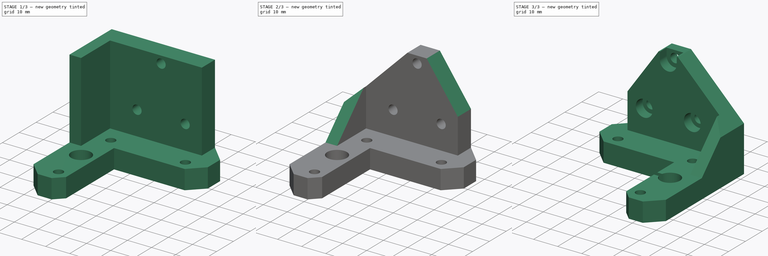
[diagram: build sequence overview — one tinted view per stage of 3, left to right]
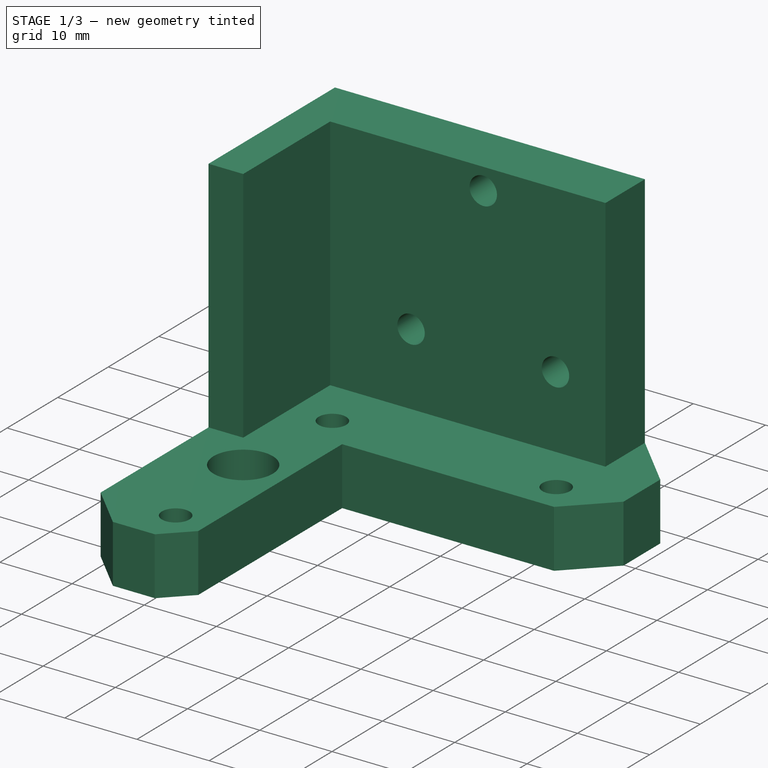
[diagram: stage 1 of 3 — iso view after this stage's code; geometry added in this stage tinted green]
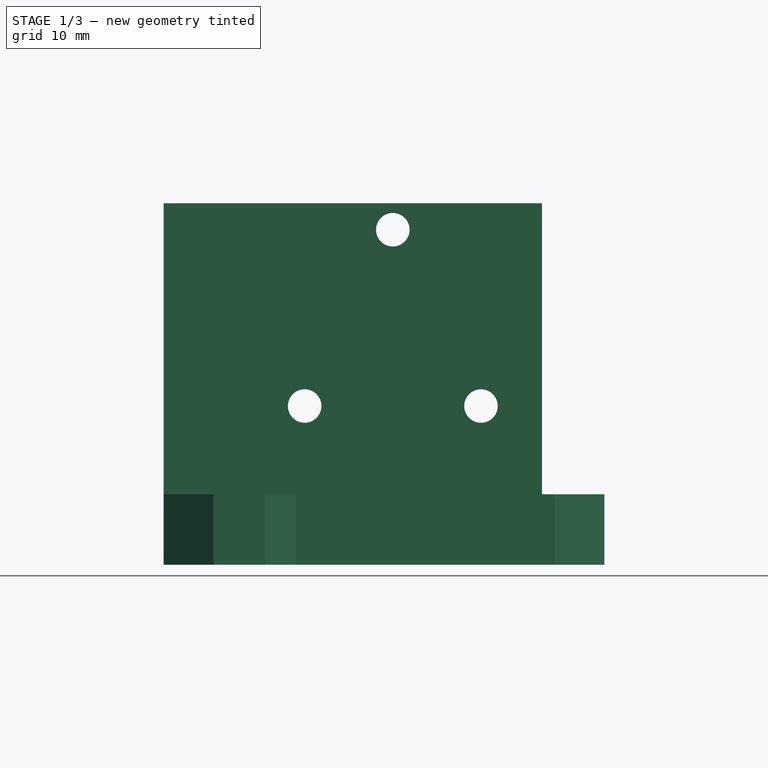
[diagram: stage 1 of 3 — front view after this stage's code; geometry added in this stage tinted green]
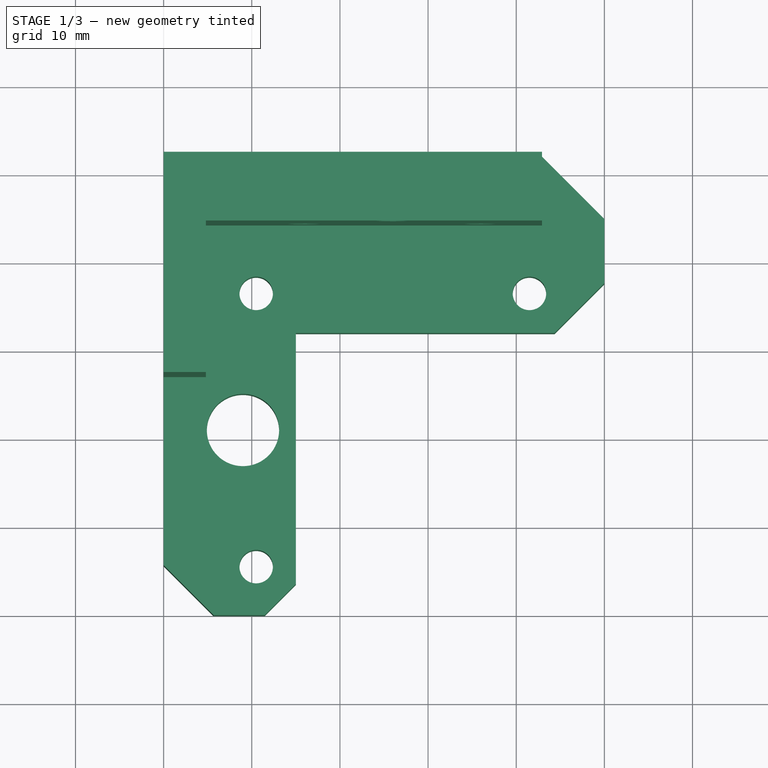
[diagram: stage 1 of 3 — top view after this stage's code; geometry added in this stage tinted green]
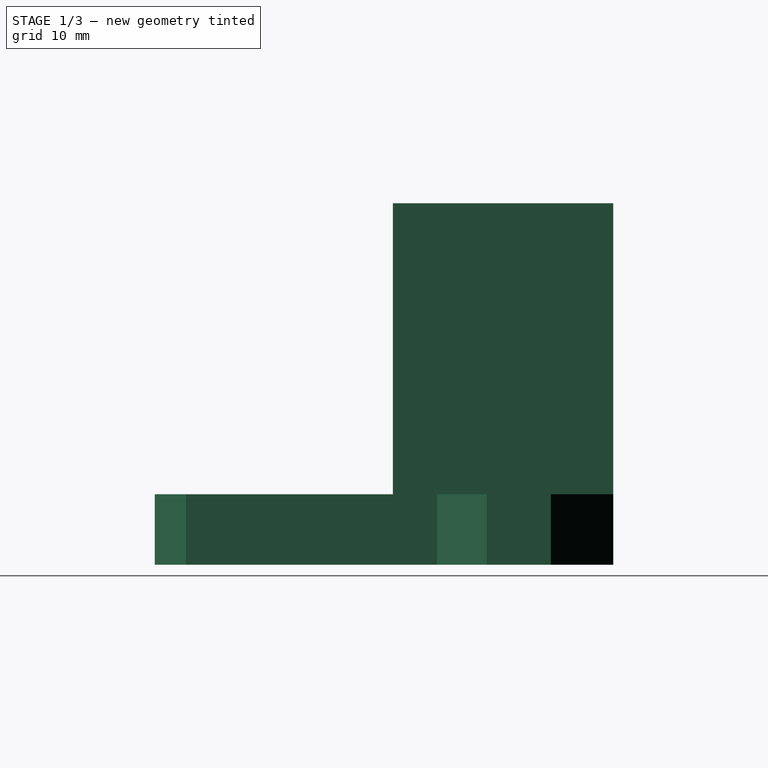
[diagram: stage 1 of 3 — right view after this stage's code; geometry added in this stage tinted green]
FCSTD DOCUMENT  (FreeCAD 0.15R4671 (Git))
Label: z-motor
License: All rights reserved
LicenseURL: http://en.wikipedia.org/wiki/All_rights_reserved
objects: Sketcher::SketchObject×7, PartDesign::Pocket×5, PartDesign::Pad×2, Part::Mirroring×1
note: 22 computed .brp shape members not serialized (recipe doc carries the construction recipe); baked Part::Feature solids carry a one-line shape summary decoded from their .brp

FEATURE [Sketcher::SketchObject] Sketch
  Placement = pos=(0,0,10) rot=(0,0,1;0rad)
  sketch-geometry (19):
    g0: Circle CenterX=41.5 CenterY=36.5 CenterZ=0 NormalX=0 NormalY=0 NormalZ=1 Radius=1.9
    g1: Circle CenterX=10.5 CenterY=36.5 CenterZ=0 NormalX=0 NormalY=0 NormalZ=1 Radius=1.9
    g2: Circle CenterX=10.5 CenterY=5.5 CenterZ=0 NormalX=0 NormalY=0 NormalZ=1 Radius=1.9
    g3: LineSegment [constr] StartX=10.5 StartY=36.5 StartZ=0 EndX=41.5 EndY=36.5 EndZ=0
    g4: LineSegment [constr] StartX=10.5 StartY=5.5 StartZ=0 EndX=10.5 EndY=36.5 EndZ=0
    g5: Circle CenterX=9 CenterY=21 CenterZ=0 NormalX=0 NormalY=0 NormalZ=1 Radius=4.1
    g6: GeomPoint [constr] X=26 Y=36.5 Z=0
    g7: LineSegment [constr] StartX=26 StartY=36.5 StartZ=0 EndX=26 EndY=21 EndZ=0
    g8: LineSegment [constr] StartX=9 StartY=21 StartZ=0 EndX=26 EndY=21 EndZ=0
    g9: LineSegment StartX=0 StartY=52 StartZ=0 EndX=0 EndY=5.65685 EndZ=0
    g10: LineSegment StartX=0 StartY=5.65685 StartZ=0 EndX=5.65685 EndY=0 EndZ=0
    g11: LineSegment StartX=5.65685 StartY=0 StartZ=0 EndX=11.4645 EndY=0 EndZ=0
    g12: LineSegment StartX=11.4645 StartY=0 StartZ=0 EndX=15 EndY=3.53553 EndZ=0
    g13: LineSegment StartX=15 StartY=3.53553 StartZ=0 EndX=15 EndY=32 EndZ=0
    g14: LineSegment StartX=15 StartY=32 StartZ=0 EndX=44.3431 EndY=32 EndZ=0
    g15: LineSegment StartX=44.3431 StartY=32 StartZ=0 EndX=50 EndY=37.6569 EndZ=0
    g16: LineSegment StartX=50 StartY=37.6569 StartZ=0 EndX=50 EndY=44.9289 EndZ=0
    g17: LineSegment StartX=50 StartY=44.9289 StartZ=0 EndX=42.9289 EndY=52 EndZ=0
    g18: LineSegment StartX=42.9289 StartY=52 StartZ=0 EndX=0 EndY=52 EndZ=0
  constraints (53):
    c: Coincident(g3,g1)
    c: Coincident(g3,g0)
    c: Coincident(g4,g2)
    c: Coincident(g4,g1)
    c: Vertical(g4)
    c: Equal(g3,g4)
    c: Horizontal(g3)
    c: Distance(g3) = 31
    c: Radius(g0) = 1.9
    c: Equal(g1,g0)
    c: Equal(g0,g2)
    c: Radius(g5) = 4.1
    c: PointOnObject(g6,g3)
    c: DistanceX(g6,g1) = -15.5
    c: Coincident(g7,g6)
    c: Vertical(g7)
    c: Coincident(g8,g5)
    c: Coincident(g8,g7)
    c: Horizontal(g8)
    c: DistanceY(g5,g1) = 15.5
    c: Distance(g8) = 17
    c: Vertical(g9)
    c: Coincident(g9,g10)
    c: PointOnObject(g10,g-1)
    c: Coincident(g10,g11)
    c: PointOnObject(g11,g-1)
    c: Coincident(g11,g12)
    c: Coincident(g12,g13)
    c: Vertical(g13)
    c: Coincident(g13,g14)
    c: Horizontal(g14)
    c: Coincident(g14,g15)
    c: Coincident(g15,g16)
    c: Coincident(g17,g18)
    c: Coincident(g9,g18)
    c: Coincident(g16,g17)
    c: Angle(g12,g-1) = 2.35619
    c: Angle(g10,g-1) = 0.785398
    c: Distance(g2,g13) = 4.5
    c: Distance(g2,g11) = 5.5
    c: Distance(g0,g14) = 4.5
    c: DistanceX(g-1,g2) = 10.5
    c: Distance(g10) = 8
    c: Distance(g12) = 5
    c: Distance(g15) = 8
    c: Distance(g17) = 10
    c: Horizontal(g18)
    c: Vertical(g16)
    c: Angle(g18,g17) = 2.35619
    c: Angle(g16,g15) = 2.35619
    c: DistanceY(g-1,g9) = 52
    c: Distance(g16,g9) = 50
    c: PointOnObject(g9,g-2)
FEATURE [PartDesign::Pad] Pad
  Length = 8
  Length2 = 100
  Placement = pos=(0,0,10) rot=(0,0,1;0rad)
  Sketch = -> Sketch
  Type = 0
FEATURE [Sketcher::SketchObject] Sketch001
  ExternalGeometry = -> [Pad]
  Placement = pos=(0,0,18) rot=(0,0,1;0rad)
  Support = -> Pad [Face16]
  sketch-geometry (6):
    g0: LineSegment StartX=42.9289 StartY=52 StartZ=0 EndX=0 EndY=52 EndZ=0
    g1: LineSegment StartX=0 StartY=52 StartZ=0 EndX=0 EndY=27 EndZ=0
    g2: LineSegment StartX=0 StartY=27 StartZ=0 EndX=4.8 EndY=27 EndZ=0
    g3: LineSegment StartX=4.8 StartY=27 StartZ=0 EndX=4.8 EndY=44.2 EndZ=0
    g4: LineSegment StartX=4.8 StartY=44.2 StartZ=0 EndX=42.9289 EndY=44.2 EndZ=0
    g5: LineSegment StartX=42.9289 StartY=44.2 StartZ=0 EndX=42.9289 EndY=52 EndZ=0
  constraints (16):
    c: Coincident(g-3,g0)
    c: Coincident(g0,g-3)
    c: Coincident(g0,g1)
    c: Vertical(g1)
    c: Coincident(g1,g2)
    c: Horizontal(g2)
    c: Coincident(g2,g3)
    c: Vertical(g3)
    c: Coincident(g3,g4)
    c: Horizontal(g4)
    c: Coincident(g4,g5)
    c: Coincident(g5,g0)
    c: Vertical(g5)
    c: Distance(g5) = 7.8
    c: Distance(g2) = 4.8
    c: Distance(g1,g-3) = 25
FEATURE [PartDesign::Pad] Pad001
  Length = 33
  Length2 = 100
  Placement = pos=(0,0,10) rot=(0,0,1;0rad)
  Sketch = -> Sketch001
  Type = 0
FEATURE [Sketcher::SketchObject] Sketch002
  ExternalGeometry = -> [Pad001]
  Placement = pos=(0,44.2,10) rot=(1,0,0;1.5708rad)
  Support = -> Pad001 [Face22]
  sketch-geometry (8):
    g0: Circle CenterX=26 CenterY=38 CenterZ=0 NormalX=0 NormalY=0 NormalZ=1 Radius=1.9
    g1: Circle CenterX=16 CenterY=18 CenterZ=0 NormalX=0 NormalY=0 NormalZ=1 Radius=1.9
    g2: Circle CenterX=36 CenterY=18 CenterZ=0 NormalX=0 NormalY=0 NormalZ=1 Radius=1.9
    g3: LineSegment [constr] StartX=16 StartY=18 StartZ=0 EndX=26 EndY=18 EndZ=0
    g4: LineSegment [constr] StartX=26 StartY=18 StartZ=0 EndX=36 EndY=18 EndZ=0
    g5: LineSegment [constr] StartX=26 StartY=38 StartZ=0 EndX=26 EndY=18 EndZ=0
    g6: LineSegment [constr] StartX=12.4 StartY=8 StartZ=0 EndX=27.9 EndY=18 EndZ=0
    g7: LineSegment [constr] StartX=27.9 StartY=18 StartZ=0 EndX=43.4 EndY=8 EndZ=0
  constraints (21):
    c: Coincident(g3,g1)
    c: Horizontal(g3)
    c: Coincident(g4,g3)
    c: Horizontal(g4)
    c: Coincident(g5,g0)
    c: Coincident(g5,g3)
    c: Vertical(g5)
    c: Equal(g4,g3)
    c: Coincident(g2,g4)
    c: DistanceX(g1,g2) = 20
    c: DistanceY(g5) = -20
    c: Coincident(g6,g-3)
    c: Coincident(g7,g-4)
    c: Coincident(g6,g7)
    c: Equal(g6,g7)
    c: Distance(g6,g-5) = 10
    c: PointOnObject(g6,g4)
    c: DistanceX(g3,g6) = 1.9
    c: Equal(g2,g1)
    c: Equal(g1,g0)
    c: Radius(g0) = 1.9
FEATURE [PartDesign::Pocket] Pocket
  Length = 5
  Placement = pos=(0,0,10) rot=(0,0,1;0rad)
  Sketch = -> Sketch002
  Type = 1
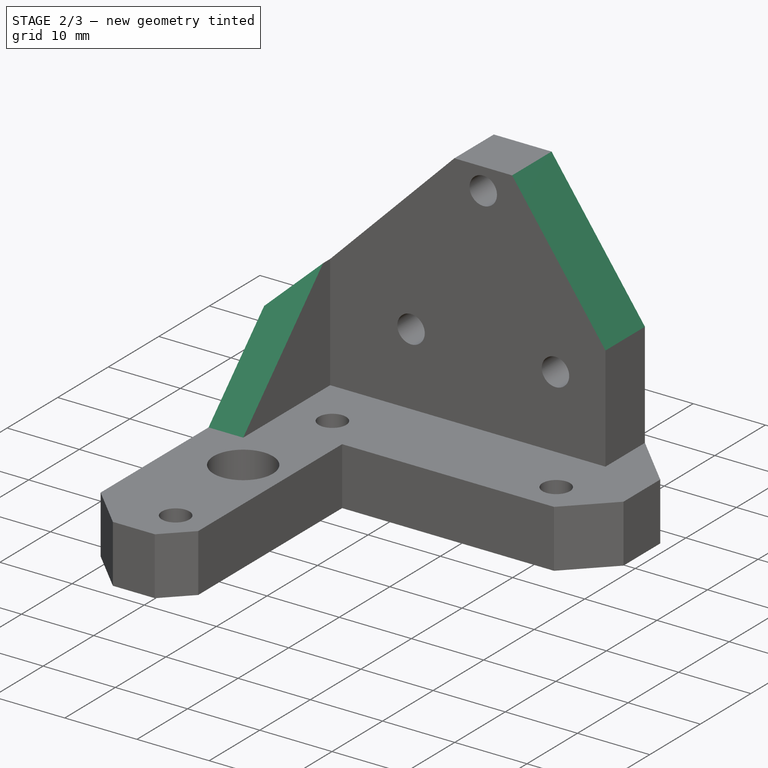
[diagram: stage 2 of 3 — iso view after this stage's code; geometry added in this stage tinted green]
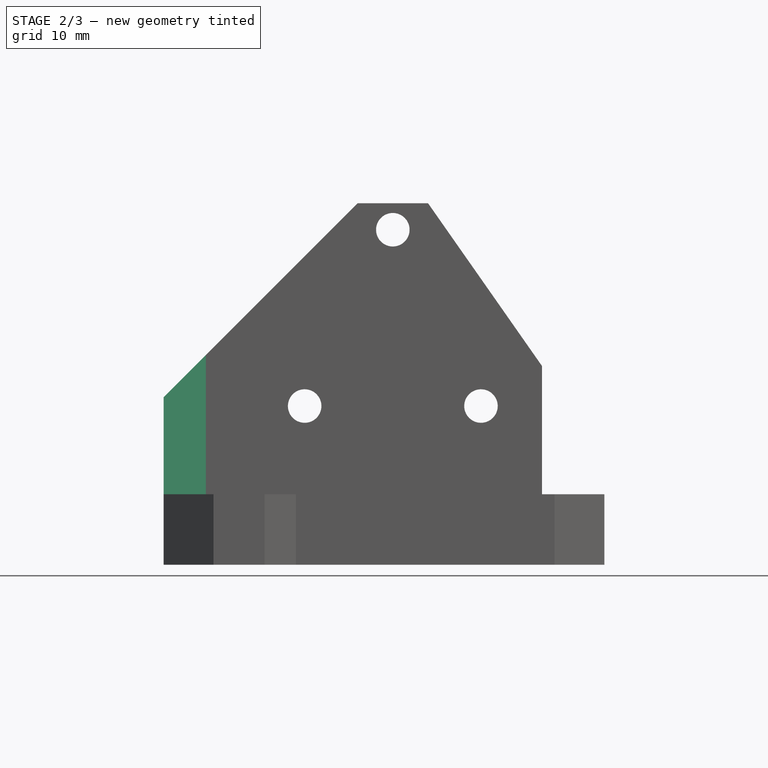
[diagram: stage 2 of 3 — front view after this stage's code; geometry added in this stage tinted green]
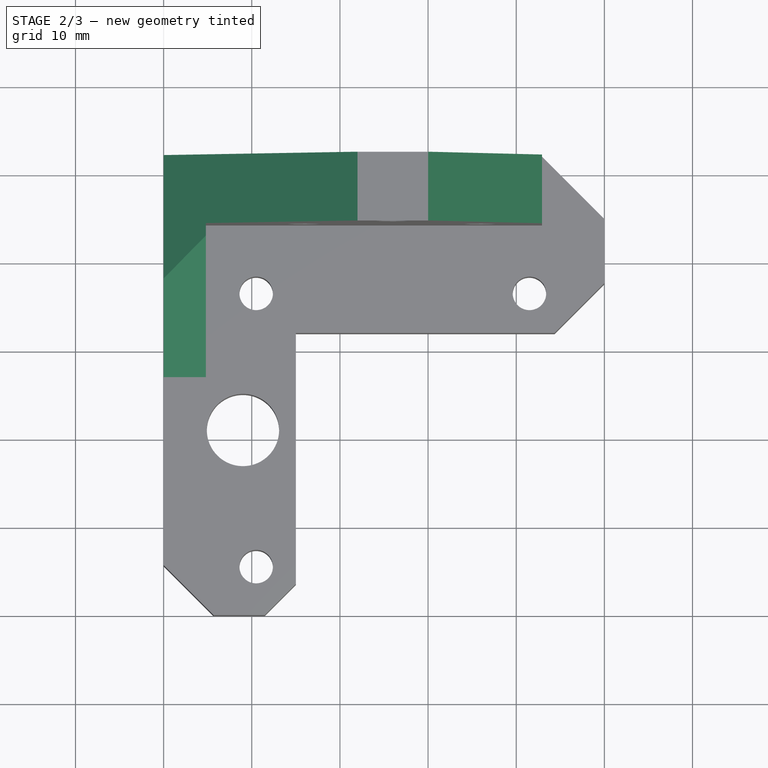
[diagram: stage 2 of 3 — top view after this stage's code; geometry added in this stage tinted green]
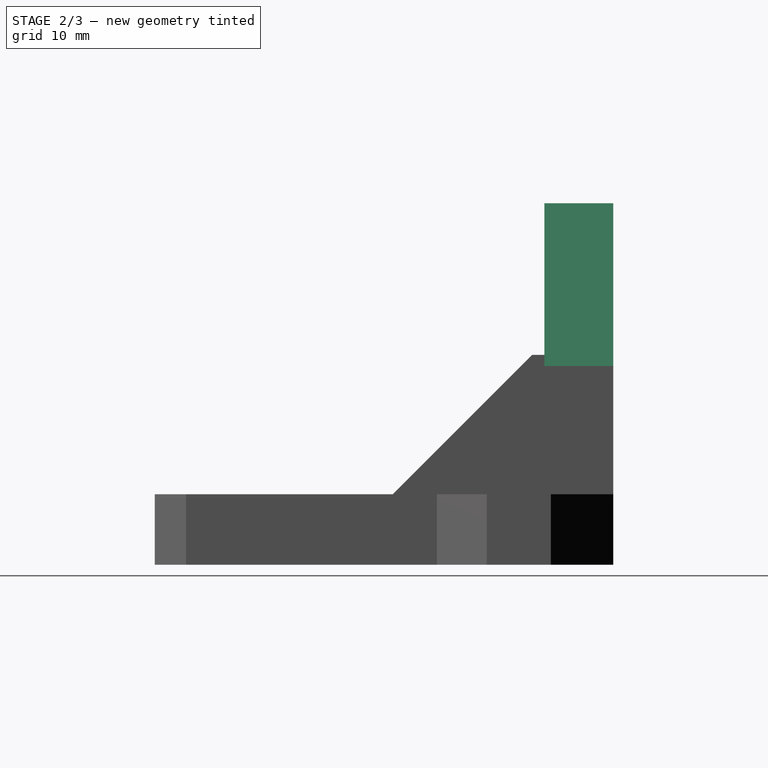
[diagram: stage 2 of 3 — right view after this stage's code; geometry added in this stage tinted green]
FEATURE [Sketcher::SketchObject] Sketch003
  ExternalGeometry = -> [Pocket]
  Placement = pos=(4.8,0,10) rot=(0.57735,0.57735,0.57735;2.0944rad)
  Support = -> Pocket [Face23]
  sketch-geometry (4):
    g0: LineSegment StartX=27 StartY=8 StartZ=0 EndX=44.2 EndY=25.2 EndZ=0
    g1: LineSegment StartX=27 StartY=8 StartZ=0 EndX=27 EndY=41 EndZ=0
    g2: LineSegment StartX=27 StartY=41 StartZ=0 EndX=44.2 EndY=41 EndZ=0
    g3: LineSegment StartX=44.2 StartY=41 StartZ=0 EndX=44.2 EndY=25.2 EndZ=0
  constraints (10):
    c: Angle(g-4,g0) = 0.785398
    c: Coincident(g0,g1)
    c: Vertical(g1)
    c: Coincident(g1,g2)
    c: Coincident(g2,g-3)
    c: Horizontal(g2)
    c: Coincident(g2,g3)
    c: Coincident(g3,g0)
    c: Vertical(g3)
    c: Coincident(g0,g-4)
FEATURE [PartDesign::Pocket] Pocket001
  Length = 5
  Placement = pos=(0,0,10) rot=(0,0,1;0rad)
  Sketch = -> Sketch003
  Type = 0
FEATURE [Sketcher::SketchObject] Sketch005
  ExternalGeometry = -> [Pocket001]
  Placement = pos=(0,52,10) rot=(0,0.707107,0.707107;3.14159rad)
  Support = -> Pocket001 [Face18]
  sketch-geometry (6):
    g0: LineSegment StartX=-42.9289 StartY=22.5356 StartZ=0 EndX=-30 EndY=41 EndZ=0
    g1: LineSegment StartX=-22 StartY=41 StartZ=0 EndX=0 EndY=19 EndZ=0
    g2: LineSegment StartX=0 StartY=19 StartZ=0 EndX=0 EndY=41 EndZ=0
    g3: LineSegment StartX=-42.9289 StartY=41 StartZ=0 EndX=-42.9289 EndY=22.5356 EndZ=0
    g4: LineSegment StartX=-42.9289 StartY=41 StartZ=0 EndX=-30 EndY=41 EndZ=0
    g5: LineSegment StartX=-22 StartY=41 StartZ=0 EndX=0 EndY=41 EndZ=0
  constraints (17):
    c: PointOnObject(g0,g-4)
    c: PointOnObject(g1,g-2)
    c: Coincident(g1,g2)
    c: Coincident(g3,g0)
    c: Angle(g0,g-4) = 0.610865
    c: Angle(g2,g1) = 0.785398
    c: DistanceX(g-3,g1) = 4
    c: DistanceX(g-3,g0) = -4
    c: Coincident(g4,g3)
    c: Horizontal(g4)
    c: Coincident(g5,g1)
    c: Coincident(g5,g2)
    c: Horizontal(g5)
    c: PointOnObject(g1,g4)
    c: Coincident(g0,g4)
    c: Coincident(g3,g-4)
    c: PointOnObject(g2,g-2)
FEATURE [PartDesign::Pocket] Pocket002
  Length = 5
  Placement = pos=(0,0,10) rot=(0,0,1;0rad)
  Sketch = -> Sketch005
  Type = 1
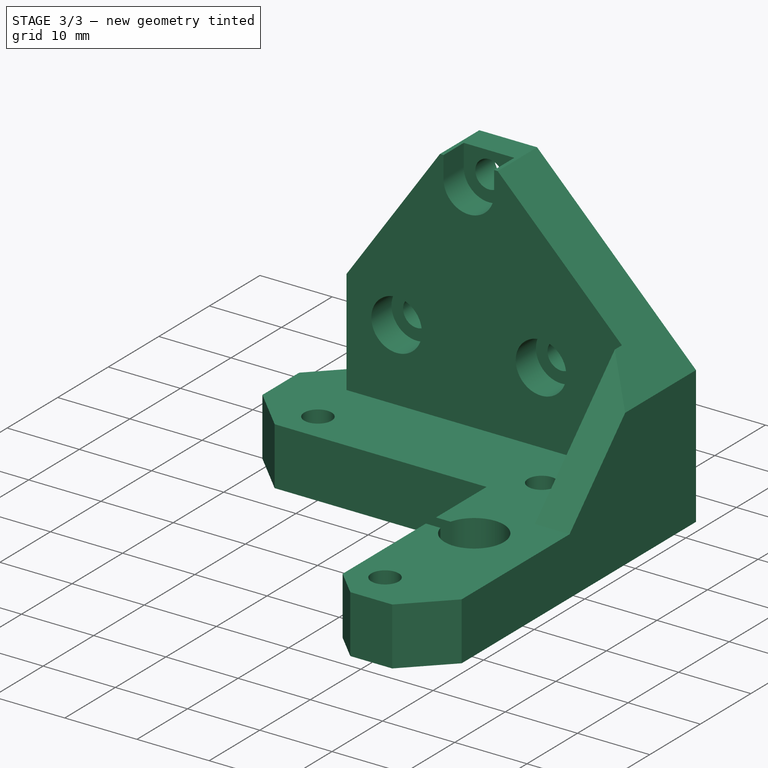
[diagram: stage 3 of 3 — iso view after this stage's code; geometry added in this stage tinted green]
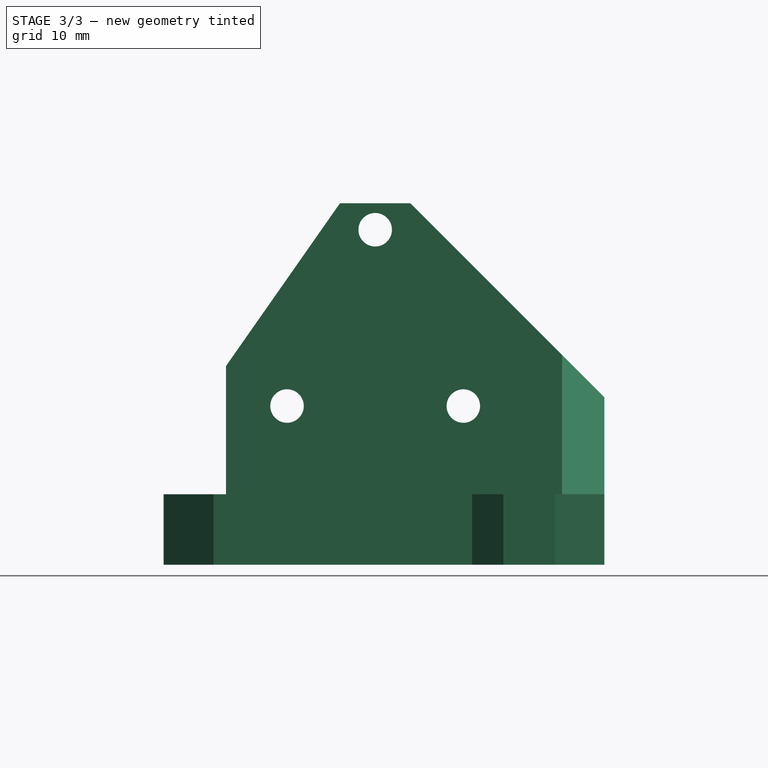
[diagram: stage 3 of 3 — front view after this stage's code; geometry added in this stage tinted green]
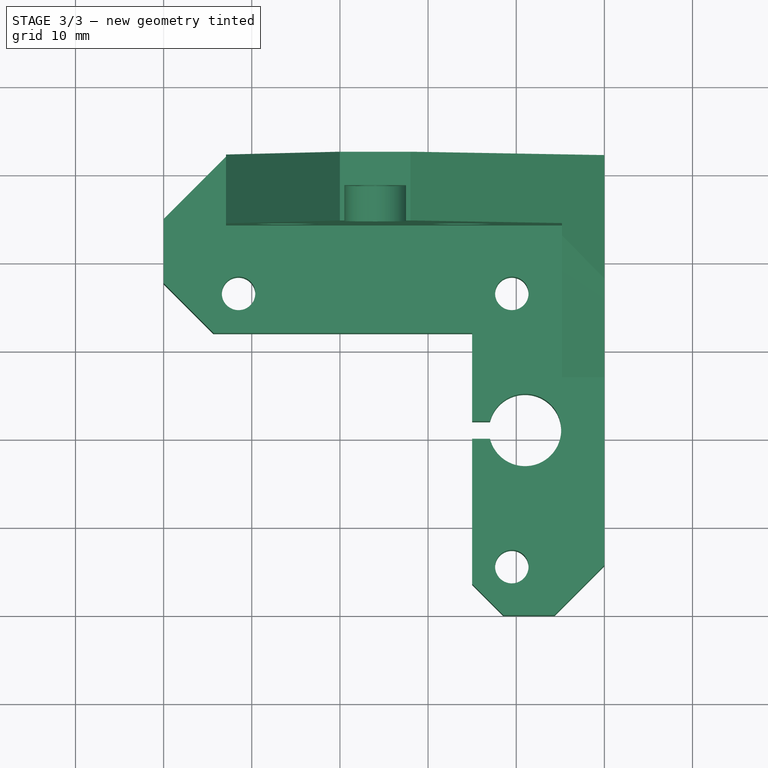
[diagram: stage 3 of 3 — top view after this stage's code; geometry added in this stage tinted green]
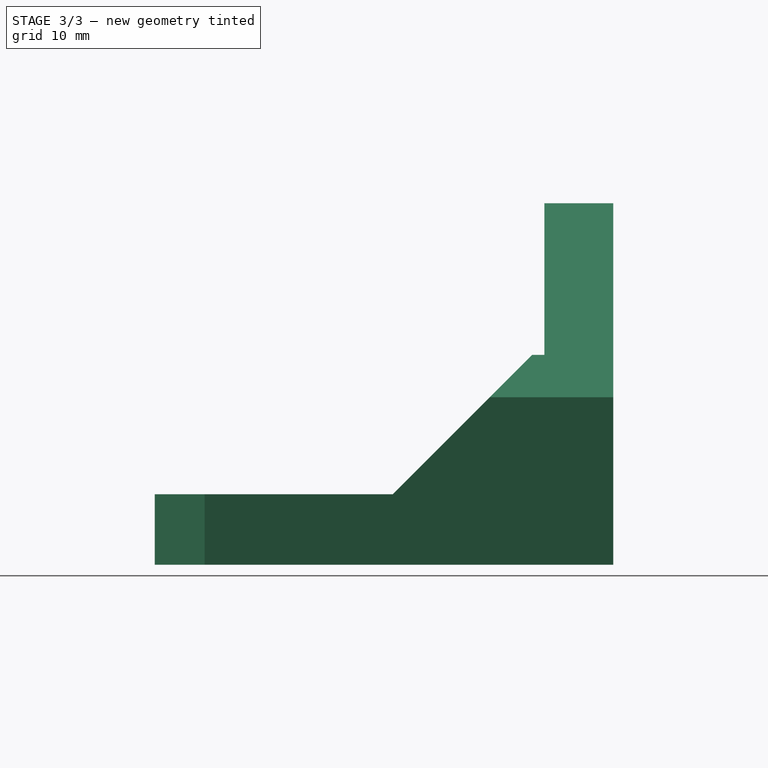
[diagram: stage 3 of 3 — right view after this stage's code; geometry added in this stage tinted green]
FEATURE [Sketcher::SketchObject] Sketch006
  ExternalGeometry = -> [Pocket002]
  Placement = pos=(0,44.2,10) rot=(1,0,0;1.5708rad)
  Support = -> Pocket002 [Face22]
  sketch-geometry (6):
    g0: Circle CenterX=16 CenterY=18 CenterZ=0 NormalX=0 NormalY=0 NormalZ=1 Radius=3.5
    g1: Circle CenterX=36 CenterY=18 CenterZ=0 NormalX=0 NormalY=0 NormalZ=1 Radius=3.5
    g2: ArcOfCircle CenterX=26 CenterY=38 CenterZ=0 NormalX=0 NormalY=0 NormalZ=1 Radius=3.5 StartAngle=3.14159 EndAngle=6.28319
    g3: LineSegment StartX=22.5 StartY=38 StartZ=0 EndX=22.5 EndY=41 EndZ=0
    g4: LineSegment StartX=22.5 StartY=41 StartZ=0 EndX=29.5 EndY=41 EndZ=0
    g5: LineSegment StartX=29.5 StartY=41 StartZ=0 EndX=29.5 EndY=38 EndZ=0
  constraints (16):
    c: Coincident(g0,g-4)
    c: Coincident(g1,g-5)
    c: Coincident(g2,g-3)
    c: Equal(g2,g0)
    c: Equal(g0,g1)
    c: PointOnObject(g3,g-6)
    c: Vertical(g3)
    c: Coincident(g3,g4)
    c: PointOnObject(g4,g-6)
    c: Coincident(g4,g5)
    c: Vertical(g5)
    c: Coincident(g2,g3)
    c: Coincident(g5,g2)
    c: Tangent(g5,g2)
    c: Tangent(g3,g2)
    c: Radius(g0) = 3.5
FEATURE [PartDesign::Pocket] Pocket003
  Length = 4
  Placement = pos=(0,0,10) rot=(0,0,1;0rad)
  Sketch = -> Sketch006
  Type = 0
FEATURE [Sketcher::SketchObject] Sketch007
  ExternalGeometry = -> [Pocket003]
  Placement = pos=(0,0,18) rot=(0,0,1;0rad)
  Support = -> Pocket003 [Face17]
  sketch-geometry (4):
    g0: LineSegment StartX=15 StartY=22 StartZ=0 EndX=12.9762 EndY=22 EndZ=0
    g1: LineSegment StartX=12.9762 StartY=22 StartZ=0 EndX=12.9762 EndY=20 EndZ=0
    g2: LineSegment StartX=12.9762 StartY=20 StartZ=0 EndX=15 EndY=20 EndZ=0
    g3: LineSegment StartX=15 StartY=20 StartZ=0 EndX=15 EndY=22 EndZ=0
  constraints (12):
    c: Coincident(g0,g1)
    c: Coincident(g1,g2)
    c: Coincident(g2,g3)
    c: Coincident(g3,g0)
    c: Horizontal(g0)
    c: Horizontal(g2)
    c: Vertical(g1)
    c: Vertical(g3)
    c: PointOnObject(g0,g-3)
    c: PointOnObject(g1,g-4)
    c: PointOnObject(g0,g-4)
    c: DistanceY(g1) = -2
FEATURE [PartDesign::Pocket] Pocket004
  Length = 5
  Placement = pos=(0,0,10) rot=(0,0,1;0rad)
  Sketch = -> Sketch007
  Type = 1
FEATURE [Part::Mirroring] Part__Mirroring  label="Pocket004 (Mirror #1)"
  Base = (0,26,30.5)
  Normal = (1,0,-1.19209e-07)
  Placement = pos=(-10,0,0) rot=(0,0,1;0rad)
  Source = -> Pocket004
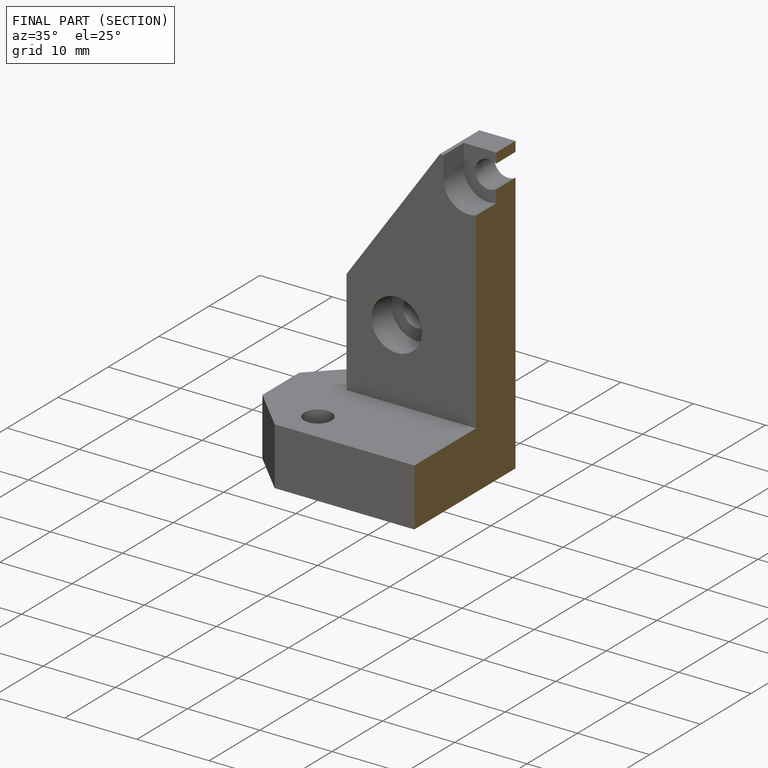
[diagram: finished part — half-section view (interior)]
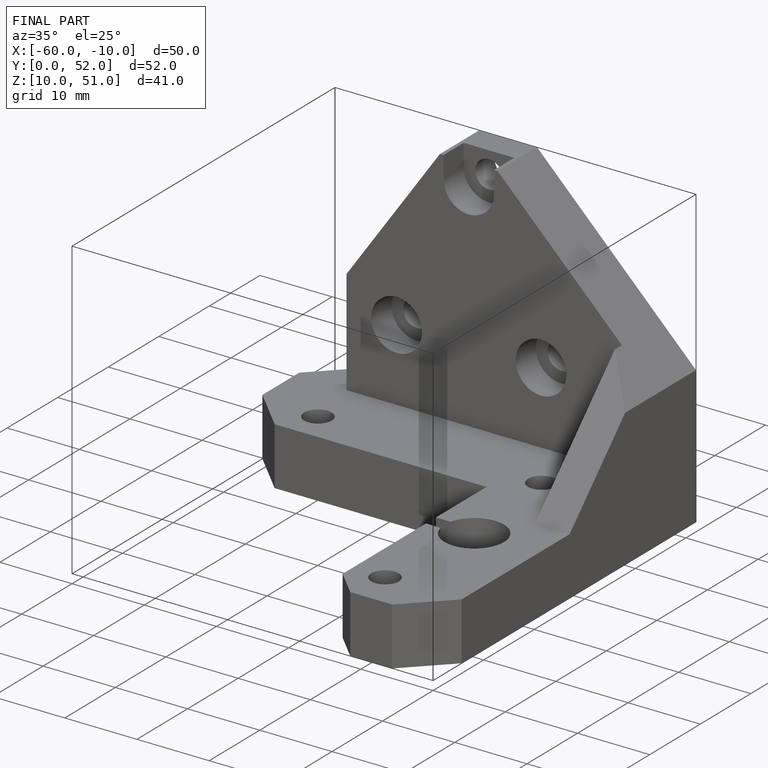
[diagram: finished part — iso view with bounding-box wireframe]
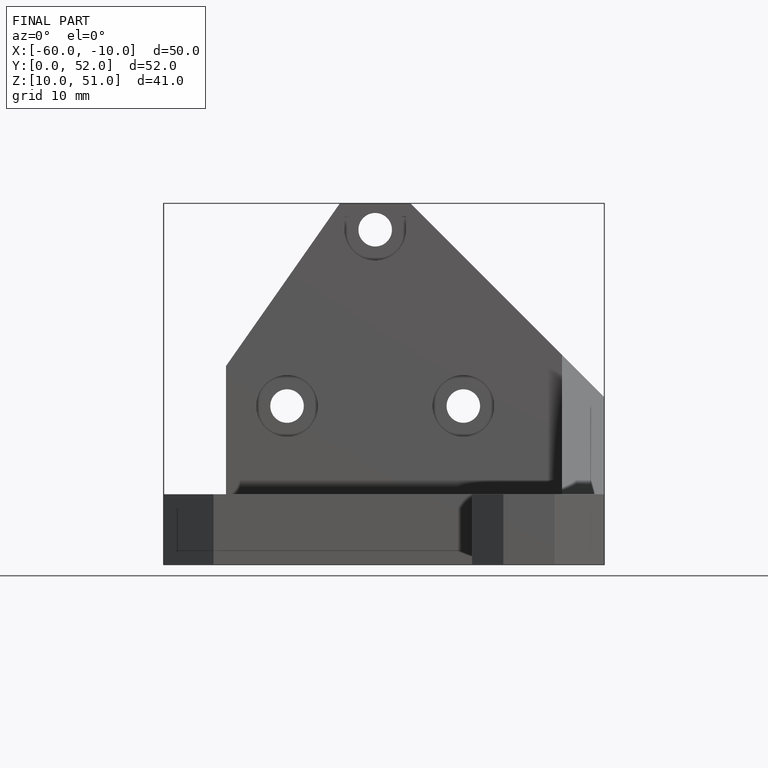
[diagram: finished part — front view with bounding-box wireframe]
